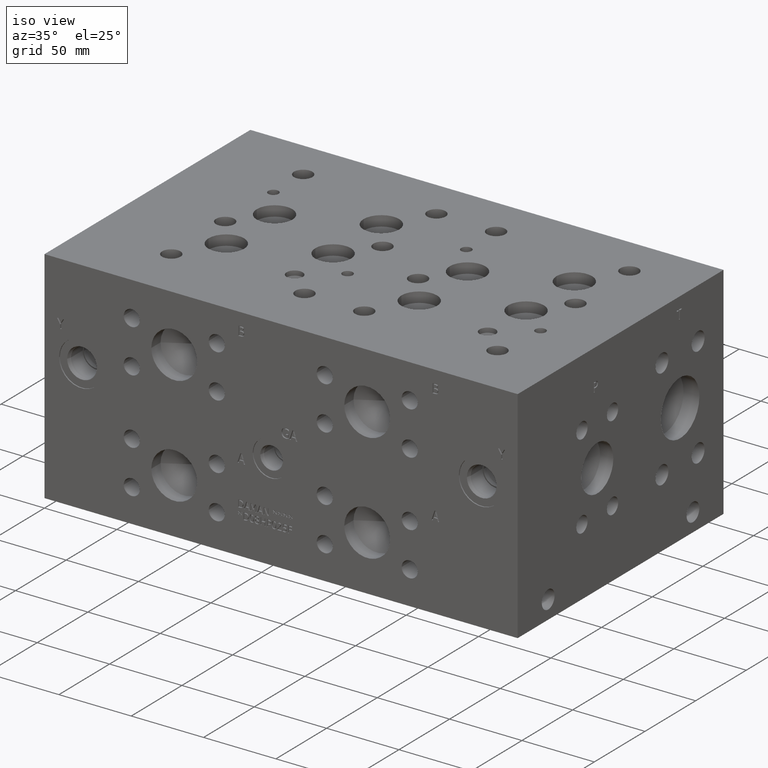
[diagram: clean part render]
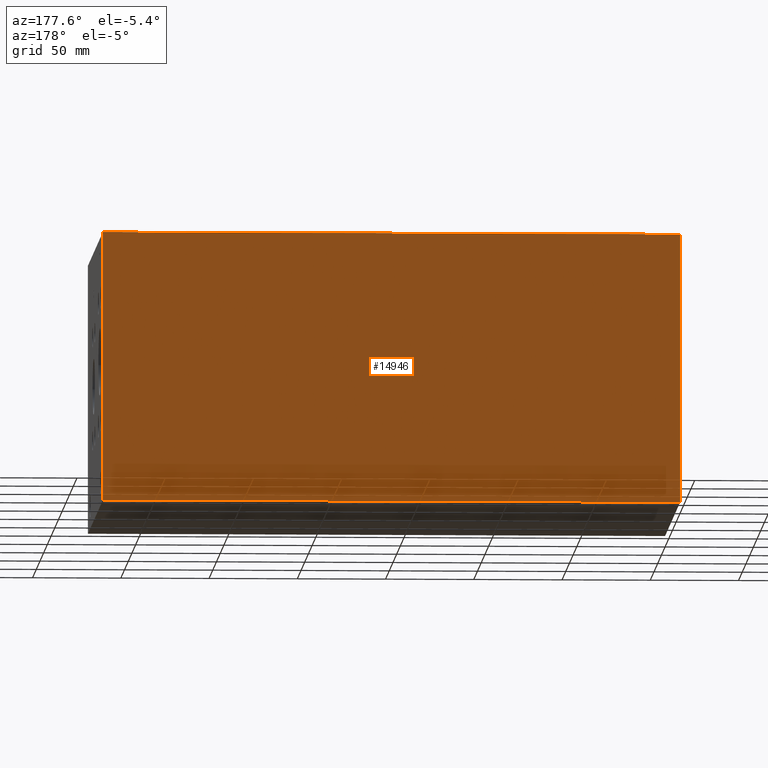
[diagram: tour spotlight — one face highlighted and labeled with its STEP entity id]
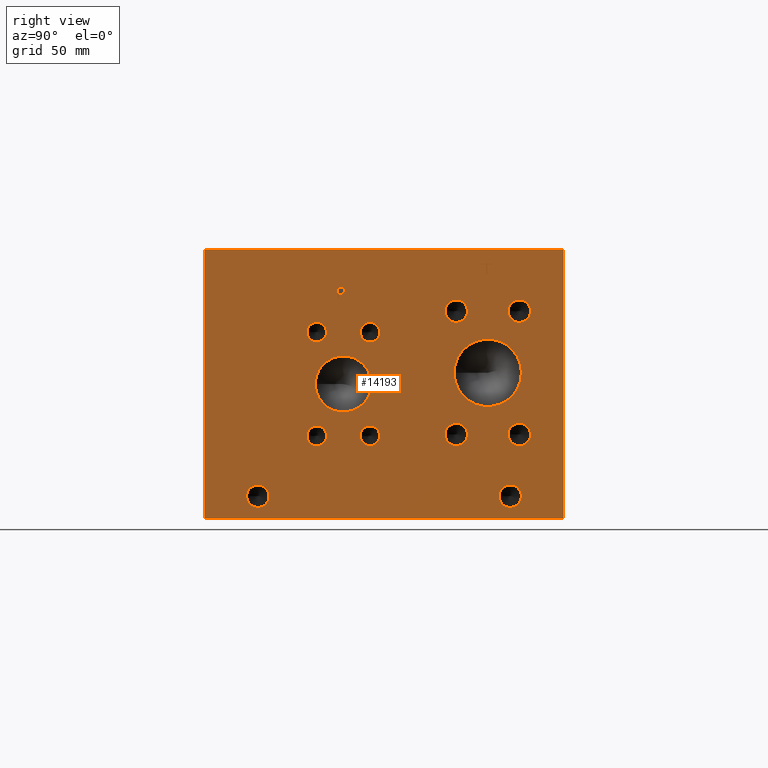
[diagram: tour spotlight — one face highlighted and labeled with its STEP entity id]
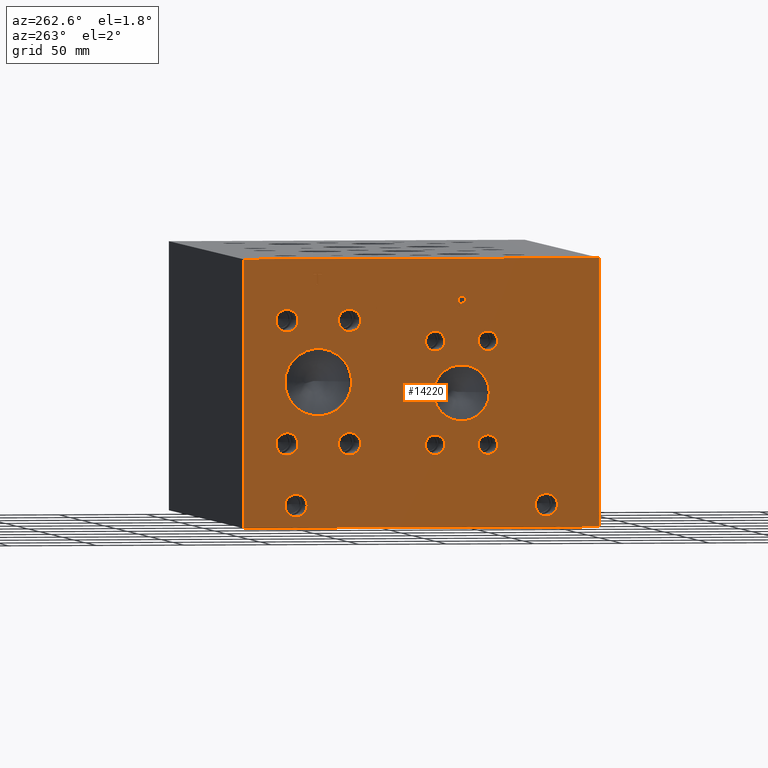
[diagram: tour spotlight — one face highlighted and labeled with its STEP entity id]
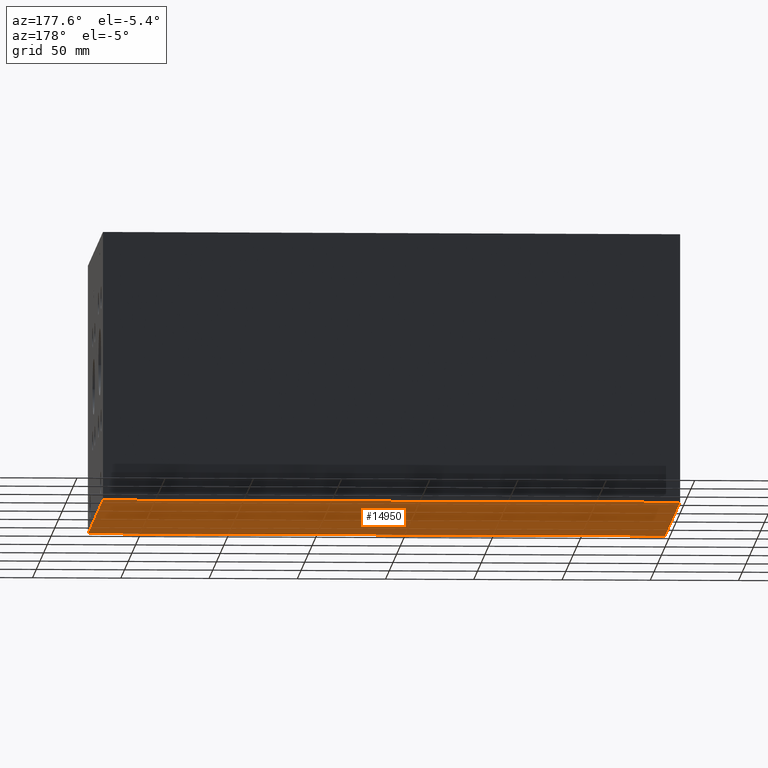
[diagram: tour spotlight — one face highlighted and labeled with its STEP entity id]
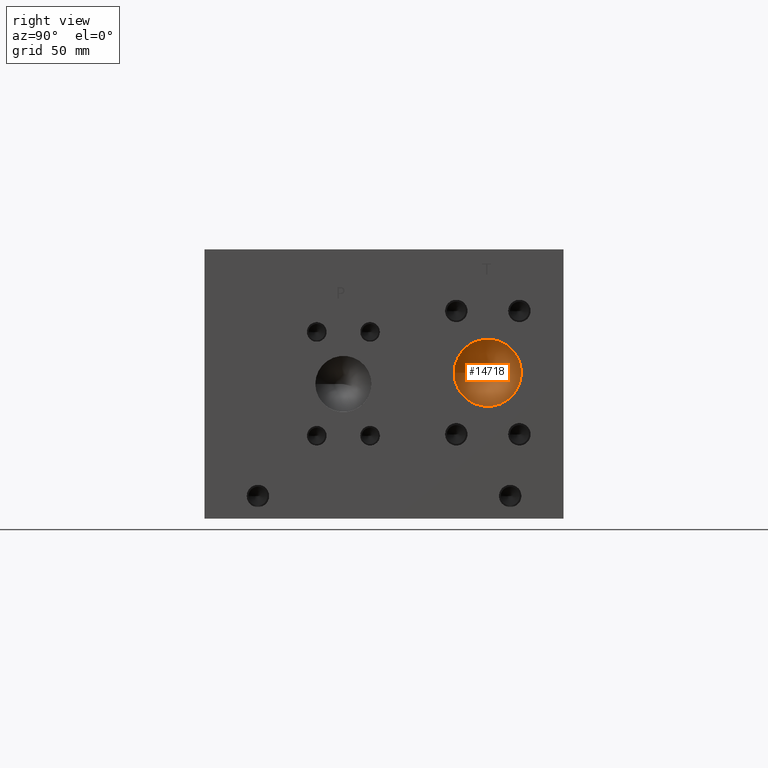
[diagram: tour spotlight — one face highlighted and labeled with its STEP entity id]
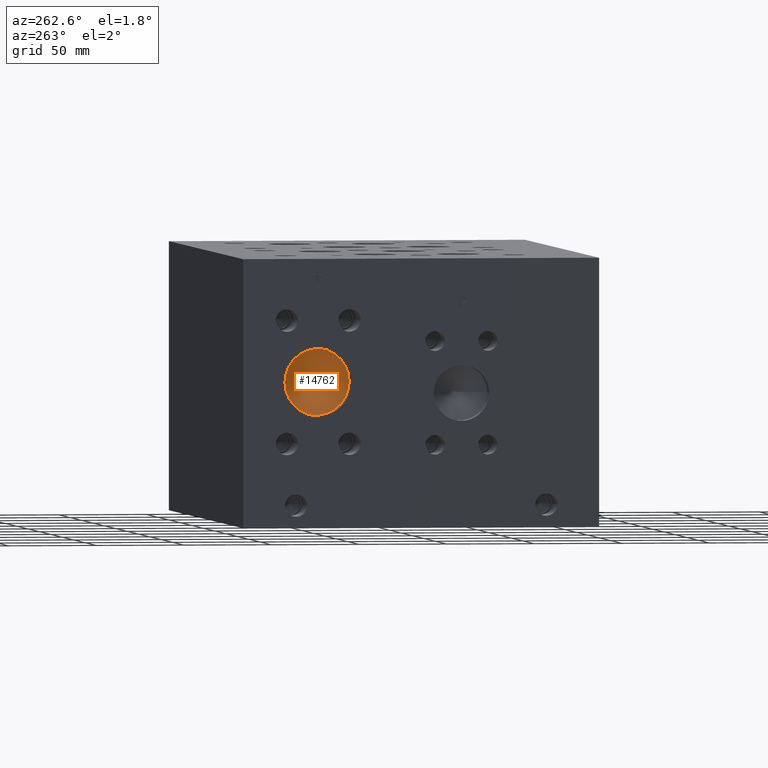
[diagram: tour spotlight — one face highlighted and labeled with its STEP entity id]
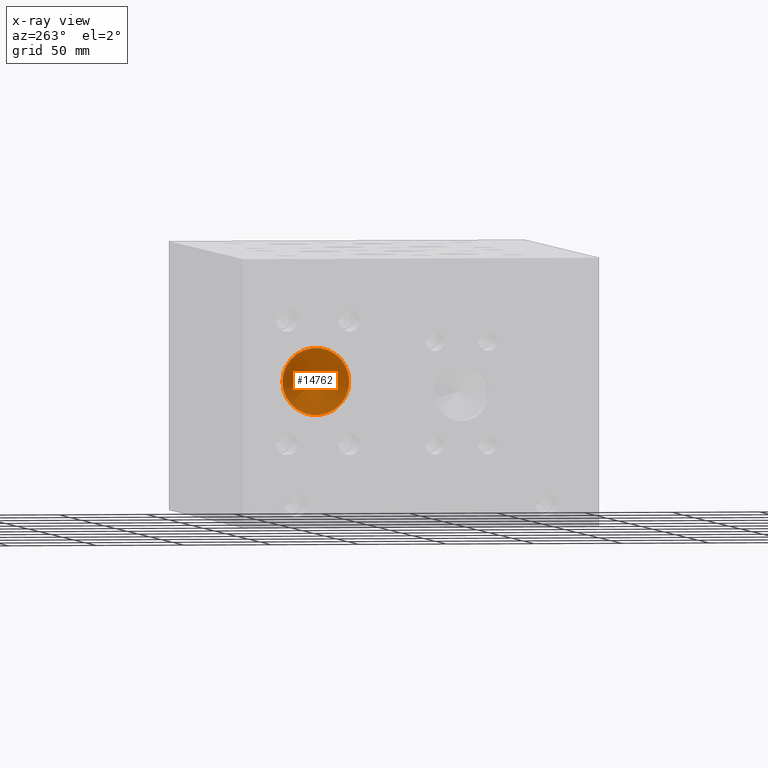
[diagram: x-ray of the same camera — body ghosted, this tour face saturated]
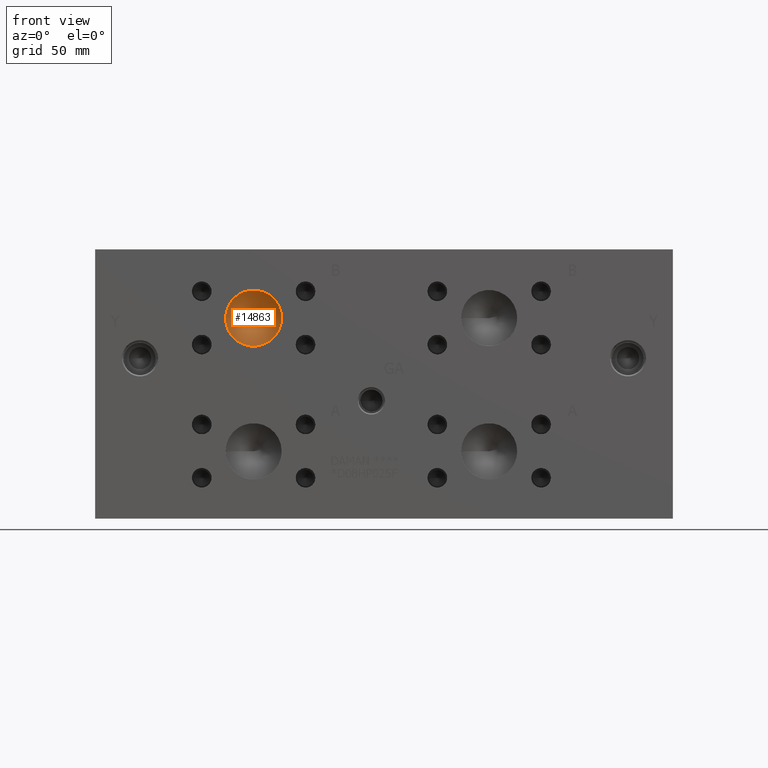
[diagram: tour spotlight — one face highlighted and labeled with its STEP entity id]
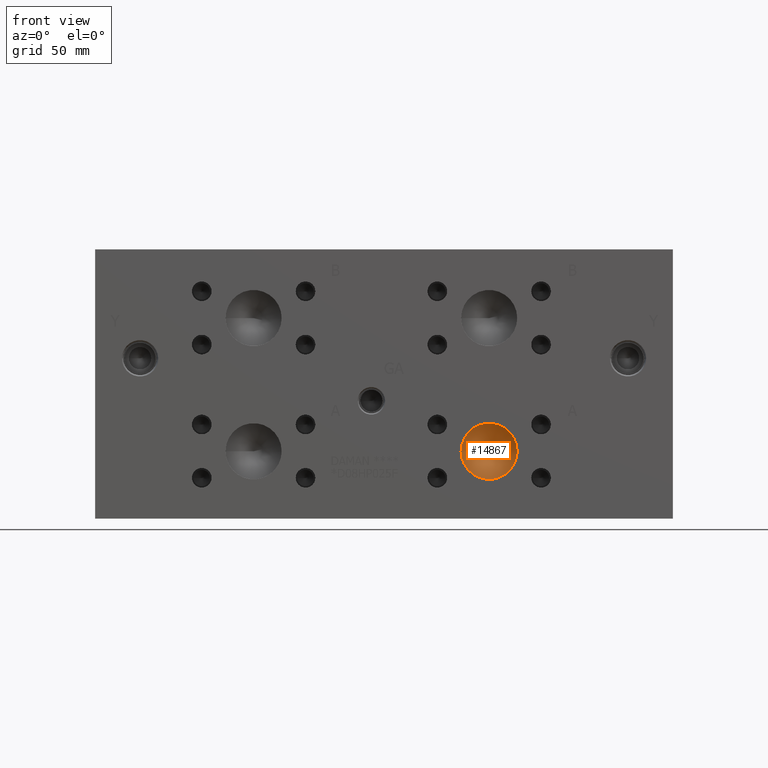
[diagram: tour spotlight — one face highlighted and labeled with its STEP entity id]
A machine part: a face-by-face anatomy tour. The part has 775 B-rep faces; the first image is the clean iso view, then the 8 largest visible faces are spotlighted one at a time (largest first), each with its STEP entity span.

Face 1 — auxiliary view, entity #14946. In plain terms, the highlighted planar face has unit normal (0, 1, 0).
Definition (entity closure, byte-faithful):
#1294=PLANE('',#16067);
#2069=FACE_OUTER_BOUND('',#2996,.T.);
#2996=EDGE_LOOP('',(#13470,#13471,#13472,#13473));
#3060=LINE('',#19777,#4342);
#3122=LINE('',#20087,#4404);
#4307=LINE('',#25886,#5589);
#4308=LINE('',#25887,#5590);
#4342=VECTOR('',#16127,10.);
#4404=VECTOR('',#16275,10.);
#5589=VECTOR('',#19560,10.);
#5590=VECTOR('',#19561,10.);
#5924=VERTEX_POINT('',#19774);
#5925=VERTEX_POINT('',#19776);
#5999=VERTEX_POINT('',#20080);
#6002=VERTEX_POINT('',#20085);
#7404=EDGE_CURVE('',#5924,#5925,#3060,.T.);
#7506=EDGE_CURVE('',#5999,#6002,#3122,.T.);
#9416=EDGE_CURVE('',#5924,#5999,#4307,.T.);
#9417=EDGE_CURVE('',#5925,#6002,#4308,.T.);
#13470=ORIENTED_EDGE('',*,*,#9416,.T.);
#13471=ORIENTED_EDGE('',*,*,#7506,.T.);
#13472=ORIENTED_EDGE('',*,*,#9417,.F.);
#13473=ORIENTED_EDGE('',*,*,#7404,.F.);
#14946=ADVANCED_FACE('',(#2069),#1294,.T.);
#16067=AXIS2_PLACEMENT_3D('',#25885,#19558,#19559);
#16127=DIRECTION('',(0.,0.,1.));
#16275=DIRECTION('',(0.,0.,1.));
#19558=DIRECTION('center_axis',(0.,1.,0.));
#19559=DIRECTION('ref_axis',(-1.,0.,0.));
#19560=DIRECTION('',(-1.,0.,0.));
#19561=DIRECTION('',(-1.,0.,0.));
#19774=CARTESIAN_POINT('',(327.025,203.2,0.));
#19776=CARTESIAN_POINT('',(327.025,203.2,152.4));
#19777=CARTESIAN_POINT('',(327.025,203.2,0.));
#20080=CARTESIAN_POINT('',(0.,203.2,0.));
#20085=CARTESIAN_POINT('',(0.,203.2,152.4));
#20087=CARTESIAN_POINT('',(0.,203.2,0.));
#25885=CARTESIAN_POINT('Origin',(327.025,203.2,0.));
#25886=CARTESIAN_POINT('',(327.025,203.2,0.));
#25887=CARTESIAN_POINT('',(327.025,203.2,152.4));

Face 2 — right view, entity #14193. In plain terms, the highlighted planar face has unit normal (1, 0, 0).
Definition (entity closure, byte-faithful):
#229=CIRCLE('',#14975,19.05);
#230=CIRCLE('',#14976,19.05);
#231=CIRCLE('',#14977,6.35);
#232=CIRCLE('',#14978,6.35);
#233=CIRCLE('',#14979,6.35);
#234=CIRCLE('',#14980,6.35);
#235=CIRCLE('',#14981,6.35);
#236=CIRCLE('',#14982,6.35);
#237=CIRCLE('',#14983,6.35);
#238=CIRCLE('',#14984,6.35);
#239=CIRCLE('',#14985,15.875);
#240=CIRCLE('',#14986,15.875);
#241=CIRCLE('',#14987,5.5626);
#242=CIRCLE('',#14988,5.5626);
#243=CIRCLE('',#14989,5.5626);
#244=CIRCLE('',#14990,5.5626);
#245=CIRCLE('',#14991,5.5626);
#246=CIRCLE('',#14992,5.5626);
#247=CIRCLE('',#14993,5.5626);
#248=CIRCLE('',#14994,5.5626);
#249=CIRCLE('',#14995,6.35);
#250=CIRCLE('',#14996,6.35);
#251=CIRCLE('',#14997,6.35);
#252=CIRCLE('',#14998,6.35);
#711=FACE_BOUND('',#2093,.T.);
#712=FACE_BOUND('',#2094,.T.);
#713=FACE_BOUND('',#2095,.T.);
#714=FACE_BOUND('',#2096,.T.);
#715=FACE_BOUND('',#2097,.T.);
#716=FACE_BOUND('',#2098,.T.);
#717=FACE_BOUND('',#2099,.T.);
#718=FACE_BOUND('',#2100,.T.);
#719=FACE_BOUND('',#2101,.T.);
#720=FACE_BOUND('',#2102,.T.);
#721=FACE_BOUND('',#2103,.T.);
#722=FACE_BOUND('',#2104,.T.);
#723=FACE_BOUND('',#2105,.T.);
#724=FACE_BOUND('',#2106,.T.);
#897=PLANE('',#14974);
#1316=FACE_OUTER_BOUND('',#2092,.T.);
#2092=EDGE_LOOP('',(#9498,#9499,#9500,#9501));
#2093=EDGE_LOOP('',(#9502,#9503));
#2094=EDGE_LOOP('',(#9504,#9505));
#2095=EDGE_LOOP('',(#9506,#9507));
#2096=EDGE_LOOP('',(#9508,#9509));
#2097=EDGE_LOOP('',(#9510,#9511));
#2098=EDGE_LOOP('',(#9512,#9513));
#2099=EDGE_LOOP('',(#9514,#9515));
#2100=EDGE_LOOP('',(#9516,#9517));
#2101=EDGE_LOOP('',(#9518,#9519));
#2102=EDGE_LOOP('',(#9520,#9521));
#2103=EDGE_LOOP('',(#9522,#9523));
#2104=EDGE_LOOP('',(#9524,#9525));
#2105=EDGE_LOOP('',(#9526,#9527,#9528,#9529,#9530,#9531,#9532,#9533));
#2106=EDGE_LOOP('',(#9534,#9535,#9536,#9537,#9538,#9539,#9540,#9541,#9542));
#3043=LINE('',#19708,#4325);
#3046=LINE('',#19714,#4328);
#3049=LINE('',#19720,#4331);
#3052=LINE('',#19726,#4334);
#3055=LINE('',#19732,#4337);
#3059=LINE('',#19775,#4341);
#3060=LINE('',#19777,#4342);
#3061=LINE('',#19779,#4343);
#3062=LINE('',#19780,#4344);
#3063=LINE('',#19831,#4345);
#3064=LINE('',#19833,#4346);
#3065=LINE('',#19835,#4347);
#3066=LINE('',#19837,#4348);
#3067=LINE('',#19839,#4349);
#3068=LINE('',#19841,#4350);
#3069=LINE('',#19843,#4351);
#3070=LINE('',#19844,#4352);
#4325=VECTOR('',#16098,10.);
#4328=VECTOR('',#16103,10.);
#4331=VECTOR('',#16108,10.);
#4334=VECTOR('',#16113,10.);
#4337=VECTOR('',#16118,10.);
#4341=VECTOR('',#16126,10.);
#4342=VECTOR('',#16127,10.);
#4343=VECTOR('',#16128,10.);
#4344=VECTOR('',#16129,10.);
#4345=VECTOR('',#16178,10.);
#4346=VECTOR('',#16179,10.);
#4347=VECTOR('',#16180,10.);
#4348=VECTOR('',#16181,10.);
#4349=VECTOR('',#16182,10.);
#4350=VECTOR('',#16183,10.);
#4351=VECTOR('',#16184,10.);
#4352=VECTOR('',#16185,10.);
#5599=B_SPLINE_CURVE_WITH_KNOTS('',2,(#19675,#19676,#19677,#19678),
 .UNSPECIFIED.,.F.,.F.,(3,1,3),(0.,1.,2.),.UNSPECIFIED.);
#5601=B_SPLINE_CURVE_WITH_KNOTS('',2,(#19696,#19697,#19698,#19699),
 .UNSPECIFIED.,.F.,.F.,(3,1,3),(0.,1.,2.),.UNSPECIFIED.);
#5603=B_SPLINE_CURVE_WITH_KNOTS('',2,(#19745,#19746,#19747,#19748),
 .UNSPECIFIED.,.F.,.F.,(3,1,3),(0.,1.,2.),.UNSPECIFIED.);
#5605=B_SPLINE_CURVE_WITH_KNOTS('',2,(#19763,#19764,#19765,#19766),
 .UNSPECIFIED.,.F.,.F.,(3,1,3),(0.,1.,2.),.UNSPECIFIED.);
#5905=VERTEX_POINT('',#19673);
#5906=VERTEX_POINT('',#19674);
#5909=VERTEX_POINT('',#19695);
#5911=VERTEX_POINT('',#19707);
#5913=VERTEX_POINT('',#19713);
#5915=VERTEX_POINT('',#19719);
#5917=VERTEX_POINT('',#19725);
#5919=VERTEX_POINT('',#19731);
#5921=VERTEX_POINT('',#19744);
#5923=VERTEX_POINT('',#19773);
#5924=VERTEX_POINT('',#19774);
#5925=VERTEX_POINT('',#19776);
#5926=VERTEX_POINT('',#19778);
#5927=VERTEX_POINT('',#19781);
#5928=VERTEX_POINT('',#19782);
#5929=VERTEX_POINT('',#19785);
#5930=VERTEX_POINT('',#19786);
#5931=VERTEX_POINT('',#19789);
#5932=VERTEX_POINT('',#19790);
#5933=VERTEX_POINT('',#19793);
#5934=VERTEX_POINT('',#19794);
#5935=VERTEX_POINT('',#19797);
#5936=VERTEX_POINT('',#19798);
#5937=VERTEX_POINT('',#19801);
#5938=VERTEX_POINT('',#19802);
#5939=VERTEX_POINT('',#19805);
#5940=VERTEX_POINT('',#19806);
#5941=VERTEX_POINT('',#19809);
#5942=VERTEX_POINT('',#19810);
#5943=VERTEX_POINT('',#19813);
#5944=VERTEX_POINT('',#19814);
#5945=VERTEX_POINT('',#19817);
#5946=VERTEX_POINT('',#19818);
#5947=VERTEX_POINT('',#19821);
#5948=VERTEX_POINT('',#19822);
#5949=VERTEX_POINT('',#19825);
#5950=VERTEX_POINT('',#19826);
#5951=VERTEX_POINT('',#19829);
#5952=VERTEX_POINT('',#19830);
#5953=VERTEX_POINT('',#19832);
#5954=VERTEX_POINT('',#19834);
#5955=VERTEX_POINT('',#19836);
#5956=VERTEX_POINT('',#19838);
#5957=VERTEX_POINT('',#19840);
#5958=VERTEX_POINT('',#19842);
#7376=EDGE_CURVE('',#5905,#5906,#5599,.T.);
#7380=EDGE_CURVE('',#5909,#5905,#5601,.T.);
#7383=EDGE_CURVE('',#5911,#5909,#3043,.T.);
#7386=EDGE_CURVE('',#5913,#5911,#3046,.T.);
#7389=EDGE_CURVE('',#5915,#5913,#3049,.T.);
#7392=EDGE_CURVE('',#5917,#5915,#3052,.T.);
#7395=EDGE_CURVE('',#5919,#5917,#3055,.T.);
#7398=EDGE_CURVE('',#5921,#5919,#5603,.T.);
#7401=EDGE_CURVE('',#5906,#5921,#5605,.T.);
#7403=EDGE_CURVE('',#5923,#5924,#3059,.T.);
#7404=EDGE_CURVE('',#5924,#5925,#3060,.T.);
#7405=EDGE_CURVE('',#5926,#5925,#3061,.T.);
#7406=EDGE_CURVE('',#5923,#5926,#3062,.T.);
#7407=EDGE_CURVE('',#5927,#5928,#229,.T.);
#7408=EDGE_CURVE('',#5928,#5927,#230,.T.);
#7409=EDGE_CURVE('',#5929,#5930,#231,.T.);
#7410=EDGE_CURVE('',#5930,#5929,#232,.T.);
#7411=EDGE_CURVE('',#5931,#5932,#233,.T.);
#7412=EDGE_CURVE('',#5932,#5931,#234,.T.);
#7413=EDGE_CURVE('',#5933,#5934,#235,.T.);
#7414=EDGE_CURVE('',#5934,#5933,#236,.T.);
#7415=EDGE_CURVE('',#5935,#5936,#237,.T.);
#7416=EDGE_CURVE('',#5936,#5935,#238,.T.);
#7417=EDGE_CURVE('',#5937,#5938,#239,.T.);
#7418=EDGE_CURVE('',#5938,#5937,#240,.T.);
#7419=EDGE_CURVE('',#5939,#5940,#241,.T.);
#7420=EDGE_CURVE('',#5940,#5939,#242,.T.);
#7421=EDGE_CURVE('',#5941,#5942,#243,.T.);
#7422=EDGE_CURVE('',#5942,#5941,#244,.T.);
#7423=EDGE_CURVE('',#5943,#5944,#245,.T.);
#7424=EDGE_CURVE('',#5944,#5943,#246,.T.);
#7425=EDGE_CURVE('',#5945,#5946,#247,.T.);
#7426=EDGE_CURVE('',#5946,#5945,#248,.T.);
#7427=EDGE_CURVE('',#5947,#5948,#249,.T.);
#7428=EDGE_CURVE('',#5948,#5947,#250,.T.);
#7429=EDGE_CURVE('',#5949,#5950,#251,.T.);
#7430=EDGE_CURVE('',#5950,#5949,#252,.T.);
#7431=EDGE_CURVE('',#5951,#5952,#3063,.T.);
#7432=EDGE_CURVE('',#5952,#5953,#3064,.T.);
#7433=EDGE_CURVE('',#5953,#5954,#3065,.T.);
#7434=EDGE_CURVE('',#5954,#5955,#3066,.T.);
#7435=EDGE_CURVE('',#5955,#5956,#3067,.T.);
#7436=EDGE_CURVE('',#5956,#5957,#3068,.T.);
#7437=EDGE_CURVE('',#5957,#5958,#3069,.T.);
#7438=EDGE_CURVE('',#5958,#5951,#3070,.T.);
#9498=ORIENTED_EDGE('',*,*,#7403,.T.);
#9499=ORIENTED_EDGE('',*,*,#7404,.T.);
#9500=ORIENTED_EDGE('',*,*,#7405,.F.);
#9501=ORIENTED_EDGE('',*,*,#7406,.F.);
#9502=ORIENTED_EDGE('',*,*,#7407,.T.);
#9503=ORIENTED_EDGE('',*,*,#7408,.T.);
#9504=ORIENTED_EDGE('',*,*,#7409,.T.);
#9505=ORIENTED_EDGE('',*,*,#7410,.T.);
#9506=ORIENTED_EDGE('',*,*,#7411,.T.);
#9507=ORIENTED_EDGE('',*,*,#7412,.T.);
#9508=ORIENTED_EDGE('',*,*,#7413,.T.);
#9509=ORIENTED_EDGE('',*,*,#7414,.T.);
#9510=ORIENTED_EDGE('',*,*,#7415,.T.);
#9511=ORIENTED_EDGE('',*,*,#7416,.T.);
#9512=ORIENTED_EDGE('',*,*,#7417,.T.);
#9513=ORIENTED_EDGE('',*,*,#7418,.T.);
#9514=ORIENTED_EDGE('',*,*,#7419,.T.);
#9515=ORIENTED_EDGE('',*,*,#7420,.T.);
#9516=ORIENTED_EDGE('',*,*,#7421,.T.);
#9517=ORIENTED_EDGE('',*,*,#7422,.T.);
#9518=ORIENTED_EDGE('',*,*,#7423,.T.);
#9519=ORIENTED_EDGE('',*,*,#7424,.T.);
#9520=ORIENTED_EDGE('',*,*,#7425,.T.);
#9521=ORIENTED_EDGE('',*,*,#7426,.T.);
#9522=ORIENTED_EDGE('',*,*,#7427,.T.);
#9523=ORIENTED_EDGE('',*,*,#7428,.T.);
#9524=ORIENTED_EDGE('',*,*,#7429,.T.);
#9525=ORIENTED_EDGE('',*,*,#7430,.T.);
#9526=ORIENTED_EDGE('',*,*,#7431,.T.);
#9527=ORIENTED_EDGE('',*,*,#7432,.T.);
#9528=ORIENTED_EDGE('',*,*,#7433,.T.);
#9529=ORIENTED_EDGE('',*,*,#7434,.T.);
#9530=ORIENTED_EDGE('',*,*,#7435,.T.);
#9531=ORIENTED_EDGE('',*,*,#7436,.T.);
#9532=ORIENTED_EDGE('',*,*,#7437,.T.);
#9533=ORIENTED_EDGE('',*,*,#7438,.T.);
#9534=ORIENTED_EDGE('',*,*,#7376,.T.);
#9535=ORIENTED_EDGE('',*,*,#7401,.T.);
#9536=ORIENTED_EDGE('',*,*,#7398,.T.);
#9537=ORIENTED_EDGE('',*,*,#7395,.T.);
#9538=ORIENTED_EDGE('',*,*,#7392,.T.);
#9539=ORIENTED_EDGE('',*,*,#7389,.T.);
#9540=ORIENTED_EDGE('',*,*,#7386,.T.);
#9541=ORIENTED_EDGE('',*,*,#7383,.T.);
#9542=ORIENTED_EDGE('',*,*,#7380,.T.);
#14193=ADVANCED_FACE('',(#1316,#711,#712,#713,#714,#715,#716,#717,#718,
#719,#720,#721,#722,#723,#724),#897,.T.);
#14974=AXIS2_PLACEMENT_3D('',#19772,#16124,#16125);
#14975=AXIS2_PLACEMENT_3D('',#19783,#16130,#16131);
#14976=AXIS2_PLACEMENT_3D('',#19784,#16132,#16133);
#14977=AXIS2_PLACEMENT_3D('',#19787,#16134,#16135);
#14978=AXIS2_PLACEMENT_3D('',#19788,#16136,#16137);
#14979=AXIS2_PLACEMENT_3D('',#19791,#16138,#16139);
#14980=AXIS2_PLACEMENT_3D('',#19792,#16140,#16141);
#14981=AXIS2_PLACEMENT_3D('',#19795,#16142,#16143);
#14982=AXIS2_PLACEMENT_3D('',#19796,#16144,#16145);
#14983=AXIS2_PLACEMENT_3D('',#19799,#16146,#16147);
#14984=AXIS2_PLACEMENT_3D('',#19800,#16148,#16149);
#14985=AXIS2_PLACEMENT_3D('',#19803,#16150,#16151);
#14986=AXIS2_PLACEMENT_3D('',#19804,#16152,#16153);
#14987=AXIS2_PLACEMENT_3D('',#19807,#16154,#16155);
#14988=AXIS2_PLACEMENT_3D('',#19808,#16156,#16157);
#14989=AXIS2_PLACEMENT_3D('',#19811,#16158,#16159);
#14990=AXIS2_PLACEMENT_3D('',#19812,#16160,#16161);
#14991=AXIS2_PLACEMENT_3D('',#19815,#16162,#16163);
#14992=AXIS2_PLACEMENT_3D('',#19816,#16164,#16165);
#14993=AXIS2_PLACEMENT_3D('',#19819,#16166,#16167);
#14994=AXIS2_PLACEMENT_3D('',#19820,#16168,#16169);
#14995=AXIS2_PLACEMENT_3D('',#19823,#16170,#16171);
#14996=AXIS2_PLACEMENT_3D('',#19824,#16172,#16173);
#14997=AXIS2_PLACEMENT_3D('',#19827,#16174,#16175);
#14998=AXIS2_PLACEMENT_3D('',#19828,#16176,#16177);
#16098=DIRECTION('',(0.,1.,0.));
#16103=DIRECTION('',(0.,0.,1.));
#16108=DIRECTION('',(0.,-1.,0.));
#16113=DIRECTION('',(0.,0.,-1.));
#16118=DIRECTION('',(0.,-1.,0.));
#16124=DIRECTION('center_axis',(1.,0.,0.));
#16125=DIRECTION('ref_axis',(0.,1.,0.));
#16126=DIRECTION('',(0.,1.,0.));
#16127=DIRECTION('',(0.,0.,1.));
#16128=DIRECTION('',(0.,1.,0.));
#16129=DIRECTION('',(0.,0.,1.));
#16130=DIRECTION('center_axis',(-1.,0.,0.));
#16131=DIRECTION('ref_axis',(0.,1.,0.));
#16132=DIRECTION('center_axis',(-1.,0.,0.));
#16133=DIRECTION('ref_axis',(0.,1.,0.));
#16134=DIRECTION('center_axis',(-1.,0.,0.));
#16135=DIRECTION('ref_axis',(0.,1.,0.));
#16136=DIRECTION('center_axis',(-1.,0.,0.));
#16137=DIRECTION('ref_axis',(0.,1.,0.));
#16138=DIRECTION('center_axis',(-1.,0.,0.));
#16139=DIRECTION('ref_axis',(0.,1.,0.));
#16140=DIRECTION('center_axis',(-1.,0.,0.));
#16141=DIRECTION('ref_axis',(0.,1.,0.));
#16142=DIRECTION('center_axis',(-1.,0.,0.));
#16143=DIRECTION('ref_axis',(0.,1.,0.));
#16144=DIRECTION('center_axis',(-1.,0.,0.));
#16145=DIRECTION('ref_axis',(0.,1.,0.));
#16146=DIRECTION('center_axis',(-1.,0.,0.));
#16147=DIRECTION('ref_axis',(0.,1.,0.));
#16148=DIRECTION('center_axis',(-1.,0.,0.));
#16149=DIRECTION('ref_axis',(0.,1.,0.));
#16150=DIRECTION('center_axis',(-1.,0.,0.));
#16151=DIRECTION('ref_axis',(0.,1.,0.));
#16152=DIRECTION('center_axis',(-1.,0.,0.));
#16153=DIRECTION('ref_axis',(0.,1.,0.));
#16154=DIRECTION('center_axis',(-1.,0.,0.));
#16155=DIRECTION('ref_axis',(0.,1.,0.));
#16156=DIRECTION('center_axis',(-1.,0.,0.));
#16157=DIRECTION('ref_axis',(0.,1.,0.));
#16158=DIRECTION('center_axis',(-1.,0.,0.));
#16159=DIRECTION('ref_axis',(0.,1.,0.));
#16160=DIRECTION('center_axis',(-1.,0.,0.));
#16161=DIRECTION('ref_axis',(0.,1.,0.));
#16162=DIRECTION('center_axis',(-1.,0.,0.));
#16163=DIRECTION('ref_axis',(0.,1.,0.));
#16164=DIRECTION('center_axis',(-1.,0.,0.));
#16165=DIRECTION('ref_axis',(0.,1.,0.));
#16166=DIRECTION('center_axis',(-1.,0.,0.));
#16167=DIRECTION('ref_axis',(0.,1.,0.));
#16168=DIRECTION('center_axis',(-1.,0.,0.));
#16169=DIRECTION('ref_axis',(0.,1.,0.));
#16170=DIRECTION('center_axis',(-1.,0.,0.));
#16171=DIRECTION('ref_axis',(0.,1.,0.));
#16172=DIRECTION('center_axis',(-1.,0.,0.));
#16173=DIRECTION('ref_axis',(0.,1.,0.));
#16174=DIRECTION('center_axis',(-1.,0.,0.));
#16175=DIRECTION('ref_axis',(0.,1.,0.));
#16176=DIRECTION('center_axis',(-1.,0.,0.));
#16177=DIRECTION('ref_axis',(0.,1.,0.));
#16178=DIRECTION('',(0.,-1.,0.));
#16179=DIRECTION('',(0.,0.,1.));
#16180=DIRECTION('',(0.,-1.,0.));
#16181=DIRECTION('',(0.,0.,1.));
#16182=DIRECTION('',(0.,1.,0.));
#16183=DIRECTION('',(0.,0.,-1.));
#16184=DIRECTION('',(0.,-1.,0.));
#16185=DIRECTION('',(0.,0.,-1.));
#19673=CARTESIAN_POINT('',(327.025,78.5130672023594,130.566168143971));
#19674=CARTESIAN_POINT('',(327.025,79.269509654532,129.048137372604));
#19675=CARTESIAN_POINT('Ctrl Pts',(327.025,78.5130672023594,130.566168143971));
#19676=CARTESIAN_POINT('Ctrl Pts',(327.025,78.8681320268486,130.324312393956));
#19677=CARTESIAN_POINT('Ctrl Pts',(327.025,79.269509654532,129.578161675827));
#19678=CARTESIAN_POINT('Ctrl Pts',(327.025,79.269509654532,129.048137372604));
#19695=CARTESIAN_POINT('',(327.025,76.8509521543883,130.962399904633));
#19696=CARTESIAN_POINT('Ctrl Pts',(327.025,76.8509521543883,130.962399904633));
#19697=CARTESIAN_POINT('Ctrl Pts',(327.025,77.4169975267624,130.962399904633));
#19698=CARTESIAN_POINT('Ctrl Pts',(327.025,78.209461048086,130.777148691856));
#19699=CARTESIAN_POINT('Ctrl Pts',(327.025,78.5130672023594,130.566168143971));
#19707=CARTESIAN_POINT('',(327.025,75.2557333776978,130.962399904633));
#19708=CARTESIAN_POINT('',(327.025,37.6278666888489,130.962399904633));
#19713=CARTESIAN_POINT('',(327.025,75.2557333776978,124.6124));
#19714=CARTESIAN_POINT('',(327.025,75.2557333776978,62.3062));
#19719=CARTESIAN_POINT('',(327.025,76.0996555692373,124.6124));
#19720=CARTESIAN_POINT('',(327.025,38.0498277846186,124.6124));
#19725=CARTESIAN_POINT('',(327.025,76.0996555692373,126.979498829928));
#19726=CARTESIAN_POINT('',(327.025,76.0996555692373,63.4897494149639));
#19731=CARTESIAN_POINT('',(327.025,76.8149310852372,126.979498829928));
#19732=CARTESIAN_POINT('',(327.025,38.4074655426186,126.979498829928));
#19744=CARTESIAN_POINT('',(327.025,78.7137560162011,127.63816980869));
#19745=CARTESIAN_POINT('Ctrl Pts',(327.025,78.7137560162011,127.63816980869));
#19746=CARTESIAN_POINT('Ctrl Pts',(327.025,78.3844205268198,127.313980186331));
#19747=CARTESIAN_POINT('Ctrl Pts',(327.025,77.4941855320861,126.979498829928));
#19748=CARTESIAN_POINT('Ctrl Pts',(327.025,76.8149310852372,126.979498829928));
#19763=CARTESIAN_POINT('Ctrl Pts',(327.025,79.269509654532,129.048137372604));
#19764=CARTESIAN_POINT('Ctrl Pts',(327.025,79.269509654532,128.636468010877));
#19765=CARTESIAN_POINT('Ctrl Pts',(327.025,78.9761952343018,127.89546315977));
#19766=CARTESIAN_POINT('Ctrl Pts',(327.025,78.7137560162011,127.63816980869));
#19772=CARTESIAN_POINT('Origin',(327.025,0.,0.));
#19773=CARTESIAN_POINT('',(327.025,0.,0.));
#19774=CARTESIAN_POINT('',(327.025,203.2,0.));
#19775=CARTESIAN_POINT('',(327.025,0.,0.));
#19776=CARTESIAN_POINT('',(327.025,203.2,152.4));
#19777=CARTESIAN_POINT('',(327.025,203.2,0.));
#19778=CARTESIAN_POINT('',(327.025,0.,152.4));
#19779=CARTESIAN_POINT('',(327.025,0.,152.4));
#19780=CARTESIAN_POINT('',(327.025,0.,0.));
#19781=CARTESIAN_POINT('',(327.025,179.4002,82.55));
#19782=CARTESIAN_POINT('',(327.025,141.3002,82.55));
#19783=CARTESIAN_POINT('Origin',(327.025,160.3502,82.55));
#19784=CARTESIAN_POINT('Origin',(327.025,160.3502,82.55));
#19785=CARTESIAN_POINT('',(327.025,184.5564,47.625));
#19786=CARTESIAN_POINT('',(327.025,171.8564,47.625));
#19787=CARTESIAN_POINT('Origin',(327.025,178.2064,47.625));
#19788=CARTESIAN_POINT('Origin',(327.025,178.2064,47.625));
#19789=CARTESIAN_POINT('',(327.025,148.844,117.475));
#19790=CARTESIAN_POINT('',(327.025,136.144,117.475));
#19791=CARTESIAN_POINT('Origin',(327.025,142.494,117.475));
#19792=CARTESIAN_POINT('Origin',(327.025,142.494,117.475));
#19793=CARTESIAN_POINT('',(327.025,148.844,47.625));
#19794=CARTESIAN_POINT('',(327.025,136.144,47.625));
#19795=CARTESIAN_POINT('Origin',(327.025,142.494,47.625));
#19796=CARTESIAN_POINT('Origin',(327.025,142.494,47.625));
#19797=CARTESIAN_POINT('',(327.025,184.5564,117.475));
#19798=CARTESIAN_POINT('',(327.025,171.8564,117.475));
#19799=CARTESIAN_POINT('Origin',(327.025,178.2064,117.475));
#19800=CARTESIAN_POINT('Origin',(327.025,178.2064,117.475));
#19801=CARTESIAN_POINT('',(327.025,94.4626,76.2));
#19802=CARTESIAN_POINT('',(327.025,62.7126,76.2));
#19803=CARTESIAN_POINT('Origin',(327.025,78.5876,76.2));
#19804=CARTESIAN_POINT('Origin',(327.025,78.5876,76.2));
#19805=CARTESIAN_POINT('',(327.025,99.2378,105.5624));
#19806=CARTESIAN_POINT('',(327.025,88.1126,105.5624));
#19807=CARTESIAN_POINT('Origin',(327.025,93.6752,105.5624));
#19808=CARTESIAN_POINT('Origin',(327.025,93.6752,105.5624));
#19809=CARTESIAN_POINT('',(327.025,69.0626,46.8376));
#19810=CARTESIAN_POINT('',(327.025,57.9374,46.8376));
#19811=CARTESIAN_POINT('Origin',(327.025,63.5,46.8376));
#19812=CARTESIAN_POINT('Origin',(327.025,63.5,46.8376));
#19813=CARTESIAN_POINT('',(327.025,99.2378,46.8376));
#19814=CARTESIAN_POINT('',(327.025,88.1126,46.8376));
#19815=CARTESIAN_POINT('Origin',(327.025,93.6752,46.8376));
#19816=CARTESIAN_POINT('Origin',(327.025,93.6752,46.8376));
#19817=CARTESIAN_POINT('',(327.025,69.0626,105.5624));
#19818=CARTESIAN_POINT('',(327.025,57.9374,105.5624));
#19819=CARTESIAN_POINT('Origin',(327.025,63.5,105.5624));
#19820=CARTESIAN_POINT('Origin',(327.025,63.5,105.5624));
#19821=CARTESIAN_POINT('',(327.025,36.5252,12.7));
#19822=CARTESIAN_POINT('',(327.025,23.8252,12.7));
#19823=CARTESIAN_POINT('Origin',(327.025,30.1752,12.7));
#19824=CARTESIAN_POINT('Origin',(327.025,30.1752,12.7));
#19825=CARTESIAN_POINT('',(327.025,179.3748,12.7));
#19826=CARTESIAN_POINT('',(327.025,166.6748,12.7));
#19827=CARTESIAN_POINT('Origin',(327.025,173.0248,12.7));
#19828=CARTESIAN_POINT('Origin',(327.025,173.0248,12.7));
#19829=CARTESIAN_POINT('',(327.025,160.131665271453,138.0998));
#19830=CARTESIAN_POINT('',(327.025,159.287743079913,138.0998));
#19831=CARTESIAN_POINT('',(327.025,80.0658326357265,138.0998));
#19832=CARTESIAN_POINT('',(327.025,159.287743079913,143.698503319482));
#19833=CARTESIAN_POINT('',(327.025,159.287743079913,69.0499));
#19834=CARTESIAN_POINT('',(327.025,157.157354132978,143.698503319482));
#19835=CARTESIAN_POINT('',(327.025,79.6438715399567,143.698503319482));
#19836=CARTESIAN_POINT('',(327.025,157.157354132978,144.449799904633));
#19837=CARTESIAN_POINT('',(327.025,157.157354132978,71.8492516597408));
#19838=CARTESIAN_POINT('',(327.025,162.262054218388,144.449799904633));
#19839=CARTESIAN_POINT('',(327.025,78.5786770664892,144.449799904633));
#19840=CARTESIAN_POINT('',(327.025,162.262054218388,143.698503319482));
#19841=CARTESIAN_POINT('',(327.025,162.262054218388,72.2248999523163));
#19842=CARTESIAN_POINT('',(327.025,160.131665271453,143.698503319482));
#19843=CARTESIAN_POINT('',(327.025,81.131027109194,143.698503319482));
#19844=CARTESIAN_POINT('',(327.025,160.131665271453,71.8492516597408));

Face 3 — auxiliary view, entity #14220. In plain terms, the highlighted planar face has unit normal (-1, 0, 0).
Definition (entity closure, byte-faithful):
#253=CIRCLE('',#15018,19.05);
#254=CIRCLE('',#15019,19.05);
#255=CIRCLE('',#15020,6.35);
#256=CIRCLE('',#15021,6.35);
#257=CIRCLE('',#15022,6.35);
#258=CIRCLE('',#15023,6.35);
#259=CIRCLE('',#15024,6.35);
#260=CIRCLE('',#15025,6.35);
#261=CIRCLE('',#15026,6.35);
#262=CIRCLE('',#15027,6.35);
#263=CIRCLE('',#15028,15.875);
#264=CIRCLE('',#15029,15.875);
#265=CIRCLE('',#15030,5.5626);
#266=CIRCLE('',#15031,5.5626);
#267=CIRCLE('',#15032,5.5626);
#268=CIRCLE('',#15033,5.5626);
#269=CIRCLE('',#15034,5.5626);
#270=CIRCLE('',#15035,5.5626);
#271=CIRCLE('',#15036,5.5626);
#272=CIRCLE('',#15037,5.5626);
#273=CIRCLE('',#15038,6.35);
#274=CIRCLE('',#15039,6.35);
#275=CIRCLE('',#15040,6.35);
#276=CIRCLE('',#15041,6.35);
#726=FACE_BOUND('',#2135,.T.);
#727=FACE_BOUND('',#2136,.T.);
#728=FACE_BOUND('',#2137,.T.);
#729=FACE_BOUND('',#2138,.T.);
#730=FACE_BOUND('',#2139,.T.);
#731=FACE_BOUND('',#2140,.T.);
#732=FACE_BOUND('',#2141,.T.);
#733=FACE_BOUND('',#2142,.T.);
#734=FACE_BOUND('',#2143,.T.);
#735=FACE_BOUND('',#2144,.T.);
#736=FACE_BOUND('',#2145,.T.);
#737=FACE_BOUND('',#2146,.T.);
#738=FACE_BOUND('',#2147,.T.);
#739=FACE_BOUND('',#2148,.T.);
#916=PLANE('',#15017);
#1343=FACE_OUTER_BOUND('',#2134,.T.);
#2134=EDGE_LOOP('',(#9663,#9664,#9665,#9666));
#2135=EDGE_LOOP('',(#9667,#9668));
#2136=EDGE_LOOP('',(#9669,#9670));
#2137=EDGE_LOOP('',(#9671,#9672));
#2138=EDGE_LOOP('',(#9673,#9674));
#2139=EDGE_LOOP('',(#9675,#9676));
#2140=EDGE_LOOP('',(#9677,#9678));
#2141=EDGE_LOOP('',(#9679,#9680));
#2142=EDGE_LOOP('',(#9681,#9682));
#2143=EDGE_LOOP('',(#9683,#9684));
#2144=EDGE_LOOP('',(#9685,#9686));
#2145=EDGE_LOOP('',(#9687,#9688));
#2146=EDGE_LOOP('',(#9689,#9690));
#2147=EDGE_LOOP('',(#9691,#9692,#9693,#9694,#9695,#9696,#9697,#9698));
#2148=EDGE_LOOP('',(#9699,#9700,#9701,#9702,#9703,#9704,#9705,#9706,#9707));
#3103=LINE('',#20015,#4385);
#3106=LINE('',#20021,#4388);
#3109=LINE('',#20027,#4391);
#3112=LINE('',#20033,#4394);
#3115=LINE('',#20039,#4397);
#3119=LINE('',#20082,#4401);
#3120=LINE('',#20084,#4402);
#3121=LINE('',#20086,#4403);
#3122=LINE('',#20087,#4404);
#3123=LINE('',#20138,#4405);
#3124=LINE('',#20140,#4406);
#3125=LINE('',#20142,#4407);
#3126=LINE('',#20144,#4408);
#3127=LINE('',#20146,#4409);
#3128=LINE('',#20148,#4410);
#3129=LINE('',#20150,#4411);
#3130=LINE('',#20151,#4412);
#4385=VECTOR('',#16244,10.);
#4388=VECTOR('',#16249,10.);
#4391=VECTOR('',#16254,10.);
#4394=VECTOR('',#16259,10.);
#4397=VECTOR('',#16264,10.);
#4401=VECTOR('',#16272,10.);
#4402=VECTOR('',#16273,10.);
#4403=VECTOR('',#16274,10.);
#4404=VECTOR('',#16275,10.);
#4405=VECTOR('',#16324,10.);
#4406=VECTOR('',#16325,10.);
#4407=VECTOR('',#16326,10.);
#4408=VECTOR('',#16327,10.);
#4409=VECTOR('',#16328,10.);
#4410=VECTOR('',#16329,10.);
#4411=VECTOR('',#16330,10.);
#4412=VECTOR('',#16331,10.);
#5615=B_SPLINE_CURVE_WITH_KNOTS('',2,(#19982,#19983,#19984,#19985),
 .UNSPECIFIED.,.F.,.F.,(3,1,3),(0.,1.,2.),.UNSPECIFIED.);
#5617=B_SPLINE_CURVE_WITH_KNOTS('',2,(#20003,#20004,#20005,#20006),
 .UNSPECIFIED.,.F.,.F.,(3,1,3),(0.,1.,2.),.UNSPECIFIED.);
#5619=B_SPLINE_CURVE_WITH_KNOTS('',2,(#20052,#20053,#20054,#20055),
 .UNSPECIFIED.,.F.,.F.,(3,1,3),(0.,1.,2.),.UNSPECIFIED.);
#5621=B_SPLINE_CURVE_WITH_KNOTS('',2,(#20070,#20071,#20072,#20073),
 .UNSPECIFIED.,.F.,.F.,(3,1,3),(0.,1.,2.),.UNSPECIFIED.);
#5981=VERTEX_POINT('',#19980);
#5982=VERTEX_POINT('',#19981);
#5985=VERTEX_POINT('',#20002);
#5987=VERTEX_POINT('',#20014);
#5989=VERTEX_POINT('',#20020);
#5991=VERTEX_POINT('',#20026);
#5993=VERTEX_POINT('',#20032);
#5995=VERTEX_POINT('',#20038);
#5997=VERTEX_POINT('',#20051);
#5999=VERTEX_POINT('',#20080);
#6000=VERTEX_POINT('',#20081);
#6001=VERTEX_POINT('',#20083);
#6002=VERTEX_POINT('',#20085);
#6003=VERTEX_POINT('',#20088);
#6004=VERTEX_POINT('',#20089);
#6005=VERTEX_POINT('',#20092);
#6006=VERTEX_POINT('',#20093);
#6007=VERTEX_POINT('',#20096);
#6008=VERTEX_POINT('',#20097);
#6009=VERTEX_POINT('',#20100);
#6010=VERTEX_POINT('',#20101);
#6011=VERTEX_POINT('',#20104);
#6012=VERTEX_POINT('',#20105);
#6013=VERTEX_POINT('',#20108);
#6014=VERTEX_POINT('',#20109);
#6015=VERTEX_POINT('',#20112);
#6016=VERTEX_POINT('',#20113);
#6017=VERTEX_POINT('',#20116);
#6018=VERTEX_POINT('',#20117);
#6019=VERTEX_POINT('',#20120);
#6020=VERTEX_POINT('',#20121);
#6021=VERTEX_POINT('',#20124);
#6022=VERTEX_POINT('',#20125);
#6023=VERTEX_POINT('',#20128);
#6024=VERTEX_POINT('',#20129);
#6025=VERTEX_POINT('',#20132);
#6026=VERTEX_POINT('',#20133);
#6027=VERTEX_POINT('',#20136);
#6028=VERTEX_POINT('',#20137);
#6029=VERTEX_POINT('',#20139);
#6030=VERTEX_POINT('',#20141);
#6031=VERTEX_POINT('',#20143);
#6032=VERTEX_POINT('',#20145);
#6033=VERTEX_POINT('',#20147);
#6034=VERTEX_POINT('',#20149);
#7476=EDGE_CURVE('',#5981,#5982,#5615,.T.);
#7480=EDGE_CURVE('',#5985,#5981,#5617,.T.);
#7483=EDGE_CURVE('',#5987,#5985,#3103,.T.);
#7486=EDGE_CURVE('',#5989,#5987,#3106,.T.);
#7489=EDGE_CURVE('',#5991,#5989,#3109,.T.);
#7492=EDGE_CURVE('',#5993,#5991,#3112,.T.);
#7495=EDGE_CURVE('',#5995,#5993,#3115,.T.);
#7498=EDGE_CURVE('',#5997,#5995,#5619,.T.);
#7501=EDGE_CURVE('',#5982,#5997,#5621,.T.);
#7503=EDGE_CURVE('',#5999,#6000,#3119,.T.);
#7504=EDGE_CURVE('',#6000,#6001,#3120,.T.);
#7505=EDGE_CURVE('',#6002,#6001,#3121,.T.);
#7506=EDGE_CURVE('',#5999,#6002,#3122,.T.);
#7507=EDGE_CURVE('',#6003,#6004,#253,.T.);
#7508=EDGE_CURVE('',#6004,#6003,#254,.T.);
#7509=EDGE_CURVE('',#6005,#6006,#255,.T.);
#7510=EDGE_CURVE('',#6006,#6005,#256,.T.);
#7511=EDGE_CURVE('',#6007,#6008,#257,.T.);
#7512=EDGE_CURVE('',#6008,#6007,#258,.T.);
#7513=EDGE_CURVE('',#6009,#6010,#259,.T.);
#7514=EDGE_CURVE('',#6010,#6009,#260,.T.);
#7515=EDGE_CURVE('',#6011,#6012,#261,.T.);
#7516=EDGE_CURVE('',#6012,#6011,#262,.T.);
#7517=EDGE_CURVE('',#6013,#6014,#263,.T.);
#7518=EDGE_CURVE('',#6014,#6013,#264,.T.);
#7519=EDGE_CURVE('',#6015,#6016,#265,.T.);
#7520=EDGE_CURVE('',#6016,#6015,#266,.T.);
#7521=EDGE_CURVE('',#6017,#6018,#267,.T.);
#7522=EDGE_CURVE('',#6018,#6017,#268,.T.);
#7523=EDGE_CURVE('',#6019,#6020,#269,.T.);
#7524=EDGE_CURVE('',#6020,#6019,#270,.T.);
#7525=EDGE_CURVE('',#6021,#6022,#271,.T.);
#7526=EDGE_CURVE('',#6022,#6021,#272,.T.);
#7527=EDGE_CURVE('',#6023,#6024,#273,.T.);
#7528=EDGE_CURVE('',#6024,#6023,#274,.T.);
#7529=EDGE_CURVE('',#6025,#6026,#275,.T.);
#7530=EDGE_CURVE('',#6026,#6025,#276,.T.);
#7531=EDGE_CURVE('',#6027,#6028,#3123,.T.);
#7532=EDGE_CURVE('',#6028,#6029,#3124,.T.);
#7533=EDGE_CURVE('',#6029,#6030,#3125,.T.);
#7534=EDGE_CURVE('',#6030,#6031,#3126,.T.);
#7535=EDGE_CURVE('',#6031,#6032,#3127,.T.);
#7536=EDGE_CURVE('',#6032,#6033,#3128,.T.);
#7537=EDGE_CURVE('',#6033,#6034,#3129,.T.);
#7538=EDGE_CURVE('',#6034,#6027,#3130,.T.);
#9663=ORIENTED_EDGE('',*,*,#7503,.T.);
#9664=ORIENTED_EDGE('',*,*,#7504,.T.);
#9665=ORIENTED_EDGE('',*,*,#7505,.F.);
#9666=ORIENTED_EDGE('',*,*,#7506,.F.);
#9667=ORIENTED_EDGE('',*,*,#7507,.T.);
#9668=ORIENTED_EDGE('',*,*,#7508,.T.);
#9669=ORIENTED_EDGE('',*,*,#7509,.T.);
#9670=ORIENTED_EDGE('',*,*,#7510,.T.);
#9671=ORIENTED_EDGE('',*,*,#7511,.T.);
#9672=ORIENTED_EDGE('',*,*,#7512,.T.);
#9673=ORIENTED_EDGE('',*,*,#7513,.T.);
#9674=ORIENTED_EDGE('',*,*,#7514,.T.);
#9675=ORIENTED_EDGE('',*,*,#7515,.T.);
#9676=ORIENTED_EDGE('',*,*,#7516,.T.);
#9677=ORIENTED_EDGE('',*,*,#7517,.T.);
#9678=ORIENTED_EDGE('',*,*,#7518,.T.);
#9679=ORIENTED_EDGE('',*,*,#7519,.T.);
#9680=ORIENTED_EDGE('',*,*,#7520,.T.);
#9681=ORIENTED_EDGE('',*,*,#7521,.T.);
#9682=ORIENTED_EDGE('',*,*,#7522,.T.);
#9683=ORIENTED_EDGE('',*,*,#7523,.T.);
#9684=ORIENTED_EDGE('',*,*,#7524,.T.);
#9685=ORIENTED_EDGE('',*,*,#7525,.T.);
#9686=ORIENTED_EDGE('',*,*,#7526,.T.);
#9687=ORIENTED_EDGE('',*,*,#7527,.T.);
#9688=ORIENTED_EDGE('',*,*,#7528,.T.);
#9689=ORIENTED_EDGE('',*,*,#7529,.T.);
#9690=ORIENTED_EDGE('',*,*,#7530,.T.);
#9691=ORIENTED_EDGE('',*,*,#7531,.T.);
#9692=ORIENTED_EDGE('',*,*,#7532,.T.);
#9693=ORIENTED_EDGE('',*,*,#7533,.T.);
#9694=ORIENTED_EDGE('',*,*,#7534,.T.);
#9695=ORIENTED_EDGE('',*,*,#7535,.T.);
#9696=ORIENTED_EDGE('',*,*,#7536,.T.);
#9697=ORIENTED_EDGE('',*,*,#7537,.T.);
#9698=ORIENTED_EDGE('',*,*,#7538,.T.);
#9699=ORIENTED_EDGE('',*,*,#7476,.T.);
#9700=ORIENTED_EDGE('',*,*,#7501,.T.);
#9701=ORIENTED_EDGE('',*,*,#7498,.T.);
#9702=ORIENTED_EDGE('',*,*,#7495,.T.);
#9703=ORIENTED_EDGE('',*,*,#7492,.T.);
#9704=ORIENTED_EDGE('',*,*,#7489,.T.);
#9705=ORIENTED_EDGE('',*,*,#7486,.T.);
#9706=ORIENTED_EDGE('',*,*,#7483,.T.);
#9707=ORIENTED_EDGE('',*,*,#7480,.T.);
#14220=ADVANCED_FACE('',(#1343,#726,#727,#728,#729,#730,#731,#732,#733,
#734,#735,#736,#737,#738,#739),#916,.T.);
#15017=AXIS2_PLACEMENT_3D('',#20079,#16270,#16271);
#15018=AXIS2_PLACEMENT_3D('',#20090,#16276,#16277);
#15019=AXIS2_PLACEMENT_3D('',#20091,#16278,#16279);
#15020=AXIS2_PLACEMENT_3D('',#20094,#16280,#16281);
#15021=AXIS2_PLACEMENT_3D('',#20095,#16282,#16283);
#15022=AXIS2_PLACEMENT_3D('',#20098,#16284,#16285);
#15023=AXIS2_PLACEMENT_3D('',#20099,#16286,#16287);
#15024=AXIS2_PLACEMENT_3D('',#20102,#16288,#16289);
#15025=AXIS2_PLACEMENT_3D('',#20103,#16290,#16291);
#15026=AXIS2_PLACEMENT_3D('',#20106,#16292,#16293);
#15027=AXIS2_PLACEMENT_3D('',#20107,#16294,#16295);
#15028=AXIS2_PLACEMENT_3D('',#20110,#16296,#16297);
#15029=AXIS2_PLACEMENT_3D('',#20111,#16298,#16299);
#15030=AXIS2_PLACEMENT_3D('',#20114,#16300,#16301);
#15031=AXIS2_PLACEMENT_3D('',#20115,#16302,#16303);
#15032=AXIS2_PLACEMENT_3D('',#20118,#16304,#16305);
#15033=AXIS2_PLACEMENT_3D('',#20119,#16306,#16307);
#15034=AXIS2_PLACEMENT_3D('',#20122,#16308,#16309);
#15035=AXIS2_PLACEMENT_3D('',#20123,#16310,#16311);
#15036=AXIS2_PLACEMENT_3D('',#20126,#16312,#16313);
#15037=AXIS2_PLACEMENT_3D('',#20127,#16314,#16315);
#15038=AXIS2_PLACEMENT_3D('',#20130,#16316,#16317);
#15039=AXIS2_PLACEMENT_3D('',#20131,#16318,#16319);
#15040=AXIS2_PLACEMENT_3D('',#20134,#16320,#16321);
#15041=AXIS2_PLACEMENT_3D('',#20135,#16322,#16323);
#16244=DIRECTION('',(0.,-1.,-1.11355060845355E-14));
#16249=DIRECTION('',(0.,-2.79741238752512E-15,1.));
#16254=DIRECTION('',(0.,1.,0.));
#16259=DIRECTION('',(0.,0.,-1.));
#16264=DIRECTION('',(0.,1.,2.48345819151512E-14));
#16270=DIRECTION('center_axis',(-1.,0.,0.));
#16271=DIRECTION('ref_axis',(0.,-1.,0.));
#16272=DIRECTION('',(0.,-1.,0.));
#16273=DIRECTION('',(0.,0.,1.));
#16274=DIRECTION('',(0.,-1.,0.));
#16275=DIRECTION('',(0.,0.,1.));
#16276=DIRECTION('center_axis',(1.,0.,0.));
#16277=DIRECTION('ref_axis',(0.,1.,0.));
#16278=DIRECTION('center_axis',(1.,0.,0.));
#16279=DIRECTION('ref_axis',(0.,1.,0.));
#16280=DIRECTION('center_axis',(1.,0.,0.));
#16281=DIRECTION('ref_axis',(0.,1.,0.));
#16282=DIRECTION('center_axis',(1.,0.,0.));
#16283=DIRECTION('ref_axis',(0.,1.,0.));
#16284=DIRECTION('center_axis',(1.,0.,0.));
#16285=DIRECTION('ref_axis',(0.,1.,0.));
#16286=DIRECTION('center_axis',(1.,0.,0.));
#16287=DIRECTION('ref_axis',(0.,1.,0.));
#16288=DIRECTION('center_axis',(1.,0.,0.));
#16289=DIRECTION('ref_axis',(0.,1.,0.));
#16290=DIRECTION('center_axis',(1.,0.,0.));
#16291=DIRECTION('ref_axis',(0.,1.,0.));
#16292=DIRECTION('center_axis',(1.,0.,0.));
#16293=DIRECTION('ref_axis',(0.,1.,0.));
#16294=DIRECTION('center_axis',(1.,0.,0.));
#16295=DIRECTION('ref_axis',(0.,1.,0.));
#16296=DIRECTION('center_axis',(1.,0.,0.));
#16297=DIRECTION('ref_axis',(0.,1.,0.));
#16298=DIRECTION('center_axis',(1.,0.,0.));
#16299=DIRECTION('ref_axis',(0.,1.,0.));
#16300=DIRECTION('center_axis',(1.,0.,0.));
#16301=DIRECTION('ref_axis',(0.,1.,0.));
#16302=DIRECTION('center_axis',(1.,0.,0.));
#16303=DIRECTION('ref_axis',(0.,1.,0.));
#16304=DIRECTION('center_axis',(1.,0.,0.));
#16305=DIRECTION('ref_axis',(0.,1.,0.));
#16306=DIRECTION('center_axis',(1.,0.,0.));
#16307=DIRECTION('ref_axis',(0.,1.,0.));
#16308=DIRECTION('center_axis',(1.,0.,0.));
#16309=DIRECTION('ref_axis',(0.,1.,0.));
#16310=DIRECTION('center_axis',(1.,0.,0.));
#16311=DIRECTION('ref_axis',(0.,1.,0.));
#16312=DIRECTION('center_axis',(1.,0.,0.));
#16313=DIRECTION('ref_axis',(0.,1.,0.));
#16314=DIRECTION('center_axis',(1.,0.,0.));
#16315=DIRECTION('ref_axis',(0.,1.,0.));
#16316=DIRECTION('center_axis',(1.,0.,0.));
#16317=DIRECTION('ref_axis',(0.,1.,0.));
#16318=DIRECTION('center_axis',(1.,0.,0.));
#16319=DIRECTION('ref_axis',(0.,1.,0.));
#16320=DIRECTION('center_axis',(1.,0.,0.));
#16321=DIRECTION('ref_axis',(0.,1.,0.));
#16322=DIRECTION('center_axis',(1.,0.,0.));
#16323=DIRECTION('ref_axis',(0.,1.,0.));
#16324=DIRECTION('',(0.,1.,0.));
#16325=DIRECTION('',(0.,-6.34560089376102E-15,1.));
#16326=DIRECTION('',(0.,1.,0.));
#16327=DIRECTION('',(0.,0.,1.));
#16328=DIRECTION('',(0.,-1.,-6.95969130283466E-15));
#16329=DIRECTION('',(0.,0.,-1.));
#16330=DIRECTION('',(0.,1.,0.));
#16331=DIRECTION('',(0.,6.34560089376105E-15,-1.));
#19980=CARTESIAN_POINT('',(0.,77.0619327976406,130.572518143971));
#19981=CARTESIAN_POINT('',(0.,76.305490345468,129.054487372604));
#19982=CARTESIAN_POINT('Ctrl Pts',(0.,77.0619327976406,130.572518143971));
#19983=CARTESIAN_POINT('Ctrl Pts',(0.,76.7068679731514,130.330662393956));
#19984=CARTESIAN_POINT('Ctrl Pts',(0.,76.305490345468,129.584511675827));
#19985=CARTESIAN_POINT('Ctrl Pts',(0.,76.305490345468,129.054487372604));
#20002=CARTESIAN_POINT('',(0.,78.7240478456117,130.968749904633));
#20003=CARTESIAN_POINT('Ctrl Pts',(0.,78.7240478456117,130.968749904633));
#20004=CARTESIAN_POINT('Ctrl Pts',(0.,78.1580024732376,130.968749904633));
#20005=CARTESIAN_POINT('Ctrl Pts',(0.,77.3655389519139,130.783498691856));
#20006=CARTESIAN_POINT('Ctrl Pts',(0.,77.0619327976406,130.572518143971));
#20014=CARTESIAN_POINT('',(0.,80.3192666223022,130.968749904633));
#20015=CARTESIAN_POINT('',(0.,141.75963331115,130.968749904633));
#20020=CARTESIAN_POINT('',(0.,80.3192666223022,124.61875));
#20021=CARTESIAN_POINT('',(0.,80.3192666223024,62.3093749999999));
#20026=CARTESIAN_POINT('',(0.,79.4753444307627,124.61875));
#20027=CARTESIAN_POINT('',(0.,141.337672215381,124.61875));
#20032=CARTESIAN_POINT('',(0.,79.4753444307627,126.985848829928));
#20033=CARTESIAN_POINT('',(0.,79.4753444307627,63.492924414964));
#20038=CARTESIAN_POINT('',(0.,78.7600689147628,126.985848829928));
#20039=CARTESIAN_POINT('',(0.,140.98003445738,126.985848829929));
#20051=CARTESIAN_POINT('',(0.,76.8612439837989,127.64451980869));
#20052=CARTESIAN_POINT('Ctrl Pts',(0.,76.8612439837989,127.64451980869));
#20053=CARTESIAN_POINT('Ctrl Pts',(0.,77.1905794731801,127.320330186331));
#20054=CARTESIAN_POINT('Ctrl Pts',(0.,78.0808144679139,126.985848829928));
#20055=CARTESIAN_POINT('Ctrl Pts',(0.,78.7600689147628,126.985848829928));
#20070=CARTESIAN_POINT('Ctrl Pts',(0.,76.305490345468,129.054487372604));
#20071=CARTESIAN_POINT('Ctrl Pts',(0.,76.305490345468,128.642818010877));
#20072=CARTESIAN_POINT('Ctrl Pts',(0.,76.5988047656982,127.90181315977));
#20073=CARTESIAN_POINT('Ctrl Pts',(0.,76.8612439837989,127.64451980869));
#20079=CARTESIAN_POINT('Origin',(0.,203.2,0.));
#20080=CARTESIAN_POINT('',(0.,203.2,0.));
#20081=CARTESIAN_POINT('',(0.,0.,0.));
#20082=CARTESIAN_POINT('',(0.,203.2,0.));
#20083=CARTESIAN_POINT('',(0.,0.,152.4));
#20084=CARTESIAN_POINT('',(0.,0.,0.));
#20085=CARTESIAN_POINT('',(0.,203.2,152.4));
#20086=CARTESIAN_POINT('',(0.,203.2,152.4));
#20087=CARTESIAN_POINT('',(0.,203.2,0.));
#20088=CARTESIAN_POINT('',(0.,179.4002,82.55));
#20089=CARTESIAN_POINT('',(0.,141.3002,82.55));
#20090=CARTESIAN_POINT('Origin',(0.,160.3502,82.55));
#20091=CARTESIAN_POINT('Origin',(0.,160.3502,82.55));
#20092=CARTESIAN_POINT('',(0.,184.5564,117.475));
#20093=CARTESIAN_POINT('',(2.22044604925031E-15,171.8564,117.475));
#20094=CARTESIAN_POINT('Origin',(0.,178.2064,117.475));
#20095=CARTESIAN_POINT('Origin',(0.,178.2064,117.475));
#20096=CARTESIAN_POINT('',(0.,148.844,117.475));
#20097=CARTESIAN_POINT('',(2.22044604925031E-15,136.144,117.475));
#20098=CARTESIAN_POINT('Origin',(0.,142.494,117.475));
#20099=CARTESIAN_POINT('Origin',(0.,142.494,117.475));
#20100=CARTESIAN_POINT('',(0.,184.5564,47.625));
#20101=CARTESIAN_POINT('',(2.22044604925031E-15,171.8564,47.625));
#20102=CARTESIAN_POINT('Origin',(0.,178.2064,47.625));
#20103=CARTESIAN_POINT('Origin',(0.,178.2064,47.625));
#20104=CARTESIAN_POINT('',(0.,148.844,47.625));
#20105=CARTESIAN_POINT('',(2.22044604925031E-15,136.144,47.625));
#20106=CARTESIAN_POINT('Origin',(0.,142.494,47.625));
#20107=CARTESIAN_POINT('Origin',(0.,142.494,47.625));
#20108=CARTESIAN_POINT('',(0.,94.4626,76.2));
#20109=CARTESIAN_POINT('',(0.,62.7126,76.2));
#20110=CARTESIAN_POINT('Origin',(0.,78.5876,76.2));
#20111=CARTESIAN_POINT('Origin',(0.,78.5876,76.2));
#20112=CARTESIAN_POINT('',(0.,99.2378,46.8376));
#20113=CARTESIAN_POINT('',(0.,88.1126,46.8376));
#20114=CARTESIAN_POINT('Origin',(0.,93.6752,46.8376));
#20115=CARTESIAN_POINT('Origin',(0.,93.6752,46.8376));
#20116=CARTESIAN_POINT('',(0.,69.06768,105.5624));
#20117=CARTESIAN_POINT('',(0.,57.94248,105.5624));
#20118=CARTESIAN_POINT('Origin',(0.,63.50508,105.5624));
#20119=CARTESIAN_POINT('Origin',(0.,63.50508,105.5624));
#20120=CARTESIAN_POINT('',(0.,99.2378,105.56748));
#20121=CARTESIAN_POINT('',(0.,88.1126,105.56748));
#20122=CARTESIAN_POINT('Origin',(0.,93.6752,105.56748));
#20123=CARTESIAN_POINT('Origin',(0.,93.6752,105.56748));
#20124=CARTESIAN_POINT('',(0.,69.06768,46.83252));
#20125=CARTESIAN_POINT('',(0.,57.94248,46.83252));
#20126=CARTESIAN_POINT('Origin',(0.,63.50508,46.83252));
#20127=CARTESIAN_POINT('Origin',(0.,63.50508,46.83252));
#20128=CARTESIAN_POINT('',(0.,179.3748,12.7));
#20129=CARTESIAN_POINT('',(0.,166.6748,12.7));
#20130=CARTESIAN_POINT('Origin',(0.,173.0248,12.7));
#20131=CARTESIAN_POINT('Origin',(0.,173.0248,12.7));
#20132=CARTESIAN_POINT('',(0.,36.5252,12.7));
#20133=CARTESIAN_POINT('',(0.,23.8252,12.7));
#20134=CARTESIAN_POINT('Origin',(0.,30.1752,12.7));
#20135=CARTESIAN_POINT('Origin',(0.,30.1752,12.7));
#20136=CARTESIAN_POINT('',(0.,160.543334728547,138.1125));
#20137=CARTESIAN_POINT('',(0.,161.387256920087,138.1125));
#20138=CARTESIAN_POINT('',(0.,181.871667364273,138.1125));
#20139=CARTESIAN_POINT('',(0.,161.387256920087,143.711203319482));
#20140=CARTESIAN_POINT('',(0.,161.387256920087,69.0562499999999));
#20141=CARTESIAN_POINT('',(0.,163.517645867022,143.711203319482));
#20142=CARTESIAN_POINT('',(0.,182.293628460043,143.711203319482));
#20143=CARTESIAN_POINT('',(0.,163.517645867022,144.462499904633));
#20144=CARTESIAN_POINT('',(0.,163.517645867022,71.8556016597408));
#20145=CARTESIAN_POINT('',(0.,158.412945781612,144.462499904633));
#20146=CARTESIAN_POINT('',(0.,183.35882293351,144.462499904633));
#20147=CARTESIAN_POINT('',(0.,158.412945781612,143.711203319482));
#20148=CARTESIAN_POINT('',(0.,158.412945781612,72.2312499523163));
#20149=CARTESIAN_POINT('',(0.,160.543334728547,143.711203319482));
#20150=CARTESIAN_POINT('',(0.,180.806472890806,143.711203319482));
#20151=CARTESIAN_POINT('',(0.,160.543334728547,71.8556016597407));

Face 4 — auxiliary view, entity #14950. In plain terms, the highlighted planar face has unit normal (0, 0, 1).
Definition (entity closure, byte-faithful):
#1298=PLANE('',#16071);
#2073=FACE_OUTER_BOUND('',#3026,.T.);
#3026=EDGE_LOOP('',(#13540,#13541,#13542,#13543));
#3059=LINE('',#19775,#4341);
#3119=LINE('',#20082,#4401);
#3437=LINE('',#22187,#4719);
#4307=LINE('',#25886,#5589);
#4341=VECTOR('',#16126,10.);
#4401=VECTOR('',#16272,10.);
#4719=VECTOR('',#16816,10.);
#5589=VECTOR('',#19560,10.);
#5923=VERTEX_POINT('',#19773);
#5924=VERTEX_POINT('',#19774);
#5999=VERTEX_POINT('',#20080);
#6000=VERTEX_POINT('',#20081);
#7403=EDGE_CURVE('',#5923,#5924,#3059,.T.);
#7503=EDGE_CURVE('',#5999,#6000,#3119,.T.);
#8011=EDGE_CURVE('',#6000,#5923,#3437,.T.);
#9416=EDGE_CURVE('',#5924,#5999,#4307,.T.);
#13540=ORIENTED_EDGE('',*,*,#8011,.F.);
#13541=ORIENTED_EDGE('',*,*,#7503,.F.);
#13542=ORIENTED_EDGE('',*,*,#9416,.F.);
#13543=ORIENTED_EDGE('',*,*,#7403,.F.);
#14950=ADVANCED_FACE('',(#2073),#1298,.F.);
#16071=AXIS2_PLACEMENT_3D('',#25891,#19568,#19569);
#16126=DIRECTION('',(0.,1.,0.));
#16272=DIRECTION('',(0.,-1.,0.));
#16816=DIRECTION('',(1.,0.,0.));
#19560=DIRECTION('',(-1.,0.,0.));
#19568=DIRECTION('center_axis',(0.,0.,1.));
#19569=DIRECTION('ref_axis',(1.,0.,0.));
#19773=CARTESIAN_POINT('',(327.025,0.,0.));
#19774=CARTESIAN_POINT('',(327.025,203.2,0.));
#19775=CARTESIAN_POINT('',(327.025,0.,0.));
#20080=CARTESIAN_POINT('',(0.,203.2,0.));
#20081=CARTESIAN_POINT('',(0.,0.,0.));
#20082=CARTESIAN_POINT('',(0.,203.2,0.));
#22187=CARTESIAN_POINT('',(0.,0.,0.));
#25886=CARTESIAN_POINT('',(327.025,203.2,0.));
#25891=CARTESIAN_POINT('Origin',(163.5125,101.6,0.));

Face 5 — right view, entity #14718. In plain terms, the highlighted conical surface has half-angle 60 deg.
Definition (entity closure, byte-faithful):
#158=CONICAL_SURFACE('',#15504,9.525,1.0471975511966);
#375=CIRCLE('',#15505,19.05);
#376=CIRCLE('',#15506,19.05);
#1841=FACE_OUTER_BOUND('',#2722,.T.);
#2722=EDGE_LOOP('',(#12403,#12404,#12405,#12406));
#4124=LINE('',#24663,#5406);
#5406=VECTOR('',#18253,9.525);
#6958=VERTEX_POINT('',#24659);
#6959=VERTEX_POINT('',#24660);
#6960=VERTEX_POINT('',#24662);
#8896=EDGE_CURVE('',#6958,#6959,#375,.T.);
#8897=EDGE_CURVE('',#6959,#6960,#4124,.T.);
#8898=EDGE_CURVE('',#6959,#6958,#376,.T.);
#12403=ORIENTED_EDGE('',*,*,#8896,.T.);
#12404=ORIENTED_EDGE('',*,*,#8897,.T.);
#12405=ORIENTED_EDGE('',*,*,#8897,.F.);
#12406=ORIENTED_EDGE('',*,*,#8898,.T.);
#14718=ADVANCED_FACE('',(#1841),#158,.F.);
#15504=AXIS2_PLACEMENT_3D('',#24658,#18249,#18250);
#15505=AXIS2_PLACEMENT_3D('',#24661,#18251,#18252);
#15506=AXIS2_PLACEMENT_3D('',#24664,#18254,#18255);
#18249=DIRECTION('center_axis',(1.,0.,0.));
#18250=DIRECTION('ref_axis',(0.,1.,0.));
#18251=DIRECTION('center_axis',(1.,0.,0.));
#18252=DIRECTION('ref_axis',(0.,1.,0.));
#18253=DIRECTION('',(-0.5,0.866025403784439,1.06057523872491E-16));
#18254=DIRECTION('center_axis',(1.,0.,0.));
#18255=DIRECTION('ref_axis',(0.,1.,0.));
#24658=CARTESIAN_POINT('Origin',(310.527218685969,160.3502,82.55));
#24659=CARTESIAN_POINT('',(316.02648,179.4002,82.55));
#24660=CARTESIAN_POINT('',(316.02648,141.3002,82.55));
#24661=CARTESIAN_POINT('Origin',(316.02648,160.3502,82.55));
#24662=CARTESIAN_POINT('',(305.027957371938,160.3502,82.55));
#24663=CARTESIAN_POINT('',(310.527218685969,150.8252,82.55));
#24664=CARTESIAN_POINT('Origin',(316.02648,160.3502,82.55));

Face 6 — auxiliary view, entity #14762. An x-ray twin of the same camera follows (body ghosted, this face saturated) — the face is partly hidden behind the body. In plain terms, the highlighted conical surface has half-angle 60 deg.
Definition (entity closure, byte-faithful):
#170=CONICAL_SURFACE('',#15602,9.525,1.0471975511966);
#429=CIRCLE('',#15603,19.05);
#430=CIRCLE('',#15604,19.05);
#1885=FACE_OUTER_BOUND('',#2776,.T.);
#2776=EDGE_LOOP('',(#12603,#12604,#12605,#12606));
#4158=LINE('',#24861,#5440);
#5440=VECTOR('',#18483,9.525);
#7024=VERTEX_POINT('',#24857);
#7025=VERTEX_POINT('',#24858);
#7026=VERTEX_POINT('',#24860);
#8984=EDGE_CURVE('',#7024,#7025,#429,.T.);
#8985=EDGE_CURVE('',#7025,#7026,#4158,.T.);
#8986=EDGE_CURVE('',#7025,#7024,#430,.T.);
#12603=ORIENTED_EDGE('',*,*,#8984,.T.);
#12604=ORIENTED_EDGE('',*,*,#8985,.T.);
#12605=ORIENTED_EDGE('',*,*,#8985,.F.);
#12606=ORIENTED_EDGE('',*,*,#8986,.T.);
#14762=ADVANCED_FACE('',(#1885),#170,.F.);
#15602=AXIS2_PLACEMENT_3D('',#24856,#18479,#18480);
#15603=AXIS2_PLACEMENT_3D('',#24859,#18481,#18482);
#15604=AXIS2_PLACEMENT_3D('',#24862,#18484,#18485);
#18479=DIRECTION('center_axis',(-1.,0.,0.));
#18480=DIRECTION('ref_axis',(0.,1.,0.));
#18481=DIRECTION('center_axis',(-1.,0.,0.));
#18482=DIRECTION('ref_axis',(0.,1.,0.));
#18483=DIRECTION('',(0.5,0.866025403784439,-1.06057523872491E-16));
#18484=DIRECTION('center_axis',(-1.,0.,0.));
#18485=DIRECTION('ref_axis',(0.,1.,0.));
#24856=CARTESIAN_POINT('Origin',(16.4977813140312,160.3502,82.55));
#24857=CARTESIAN_POINT('',(10.99852,179.4002,82.55));
#24858=CARTESIAN_POINT('',(10.99852,141.3002,82.55));
#24859=CARTESIAN_POINT('Origin',(10.99852,160.3502,82.55));
#24860=CARTESIAN_POINT('',(21.9970426280624,160.3502,82.55));
#24861=CARTESIAN_POINT('',(16.4977813140312,150.8252,82.55));
#24862=CARTESIAN_POINT('Origin',(10.99852,160.3502,82.55));

Face 7 — front view, entity #14863. In plain terms, the highlighted conical surface has half-angle 60 deg.
Definition (entity closure, byte-faithful):
#200=CONICAL_SURFACE('',#15838,7.9375,1.0471975511966);
#564=CIRCLE('',#15839,15.875);
#565=CIRCLE('',#15840,15.875);
#1986=FACE_OUTER_BOUND('',#2899,.T.);
#2899=EDGE_LOOP('',(#13075,#13076,#13077,#13078));
#4237=LINE('',#25416,#5519);
#5519=VECTOR('',#19034,7.9375);
#7180=VERTEX_POINT('',#25412);
#7181=VERTEX_POINT('',#25413);
#7182=VERTEX_POINT('',#25415);
#9200=EDGE_CURVE('',#7180,#7181,#564,.T.);
#9201=EDGE_CURVE('',#7181,#7182,#4237,.T.);
#9202=EDGE_CURVE('',#7181,#7180,#565,.T.);
#13075=ORIENTED_EDGE('',*,*,#9200,.T.);
#13076=ORIENTED_EDGE('',*,*,#9201,.T.);
#13077=ORIENTED_EDGE('',*,*,#9201,.F.);
#13078=ORIENTED_EDGE('',*,*,#9202,.T.);
#14863=ADVANCED_FACE('',(#1986),#200,.F.);
#15838=AXIS2_PLACEMENT_3D('',#25411,#19030,#19031);
#15839=AXIS2_PLACEMENT_3D('',#25414,#19032,#19033);
#15840=AXIS2_PLACEMENT_3D('',#25417,#19035,#19036);
#19030=DIRECTION('center_axis',(0.,-1.,0.));
#19031=DIRECTION('ref_axis',(1.,0.,0.));
#19032=DIRECTION('center_axis',(0.,-1.,0.));
#19033=DIRECTION('ref_axis',(1.,0.,0.));
#19034=DIRECTION('',(0.866025403784439,0.5,1.06057523872491E-16));
#19035=DIRECTION('center_axis',(0.,-1.,0.));
#19036=DIRECTION('ref_axis',(1.,0.,0.));
#25411=CARTESIAN_POINT('Origin',(89.6874,13.7481577616927,113.5126));
#25412=CARTESIAN_POINT('',(105.5624,9.16544,113.5126));
#25413=CARTESIAN_POINT('',(73.8124,9.16544,113.5126));
#25414=CARTESIAN_POINT('Origin',(89.6874,9.16544,113.5126));
#25415=CARTESIAN_POINT('',(89.6874,18.3308755233853,113.5126));
#25416=CARTESIAN_POINT('',(81.7499,13.7481577616927,113.5126));
#25417=CARTESIAN_POINT('Origin',(89.6874,9.16544,113.5126));

Face 8 — front view, entity #14867. In plain terms, the highlighted conical surface has half-angle 60 deg.
Definition (entity closure, byte-faithful):
#202=CONICAL_SURFACE('',#15846,7.9375,1.0471975511966);
#568=CIRCLE('',#15847,15.875);
#569=CIRCLE('',#15848,15.875);
#1990=FACE_OUTER_BOUND('',#2903,.T.);
#2903=EDGE_LOOP('',(#13095,#13096,#13097,#13098));
#4241=LINE('',#25434,#5523);
#5523=VECTOR('',#19054,7.9375);
#7186=VERTEX_POINT('',#25430);
#7187=VERTEX_POINT('',#25431);
#7188=VERTEX_POINT('',#25433);
#9208=EDGE_CURVE('',#7186,#7187,#568,.T.);
#9209=EDGE_CURVE('',#7187,#7188,#4241,.T.);
#9210=EDGE_CURVE('',#7187,#7186,#569,.T.);
#13095=ORIENTED_EDGE('',*,*,#9208,.T.);
#13096=ORIENTED_EDGE('',*,*,#9209,.T.);
#13097=ORIENTED_EDGE('',*,*,#9209,.F.);
#13098=ORIENTED_EDGE('',*,*,#9210,.T.);
#14867=ADVANCED_FACE('',(#1990),#202,.F.);
#15846=AXIS2_PLACEMENT_3D('',#25429,#19050,#19051);
#15847=AXIS2_PLACEMENT_3D('',#25432,#19052,#19053);
#15848=AXIS2_PLACEMENT_3D('',#25435,#19055,#19056);
#19050=DIRECTION('center_axis',(0.,-1.,0.));
#19051=DIRECTION('ref_axis',(1.,0.,0.));
#19052=DIRECTION('center_axis',(0.,-1.,0.));
#19053=DIRECTION('ref_axis',(1.,0.,0.));
#19054=DIRECTION('',(0.866025403784439,0.5,1.06057523872491E-16));
#19055=DIRECTION('center_axis',(0.,-1.,0.));
#19056=DIRECTION('ref_axis',(1.,0.,0.));
#25429=CARTESIAN_POINT('Origin',(223.0374,13.7481577616927,38.1));
#25430=CARTESIAN_POINT('',(238.9124,9.16544,38.1));
#25431=CARTESIAN_POINT('',(207.1624,9.16544,38.1));
#25432=CARTESIAN_POINT('Origin',(223.0374,9.16544,38.1));
#25433=CARTESIAN_POINT('',(223.0374,18.3308755233853,38.1));
#25434=CARTESIAN_POINT('',(215.0999,13.7481577616927,38.1));
#25435=CARTESIAN_POINT('Origin',(223.0374,9.16544,38.1));